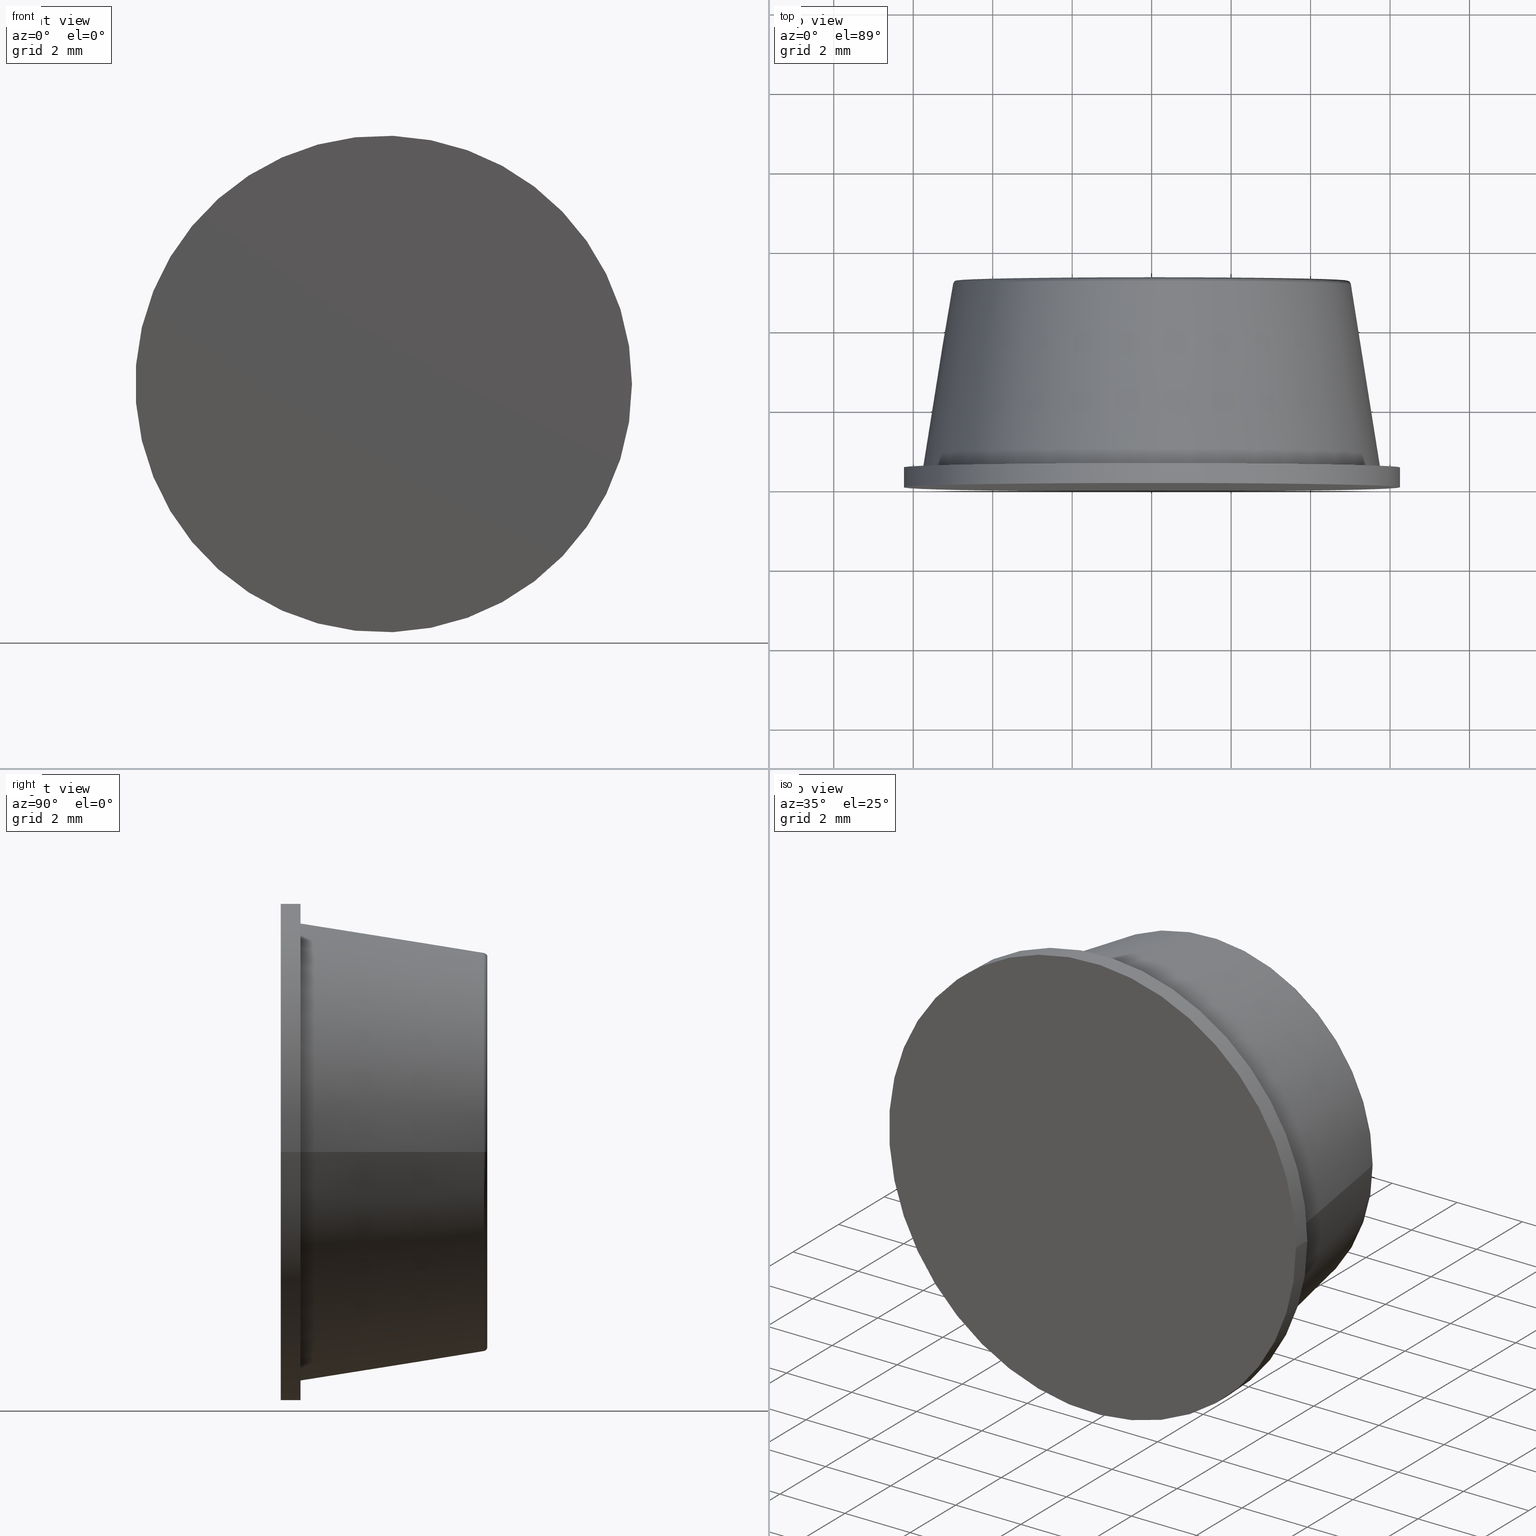
[diagram: canonical four-view strip — front | top / right | iso, engineering-drawing reading convention]
A machine part, canonical four-view strip (front | top / right | iso — engineering-drawing reading convention). The complete STEP part file that produces these views, byte-faithful:
ISO-10303-21;
HEADER;
/* Generated by software containing ST-Developer
 * from STEP Tools, Inc. (www.steptools.com) 
 */

FILE_DESCRIPTION(
/* description */ (''),
/* implementation_level */ '2;1');

FILE_NAME(
/* name */ '\\\\SYNOLOGYNAS\\web\\db2\\PR2-12-5T\\\X2\B3C4BA74\X0\\\PR
2-12-5T.stp',
/* time_stamp */ '2024-10-09T15:47:53+09:00',
/* author */ ('user'),
/* organization */ (''),
/* preprocessor_version */ 'ST-DEVELOPER v15.6',
/* originating_system */ 'Autodesk Inventor 2015',
/* authorisation */ '');

FILE_SCHEMA (('AUTOMOTIVE_DESIGN { 1 0 10303 214 3 1 1 }'));
ENDSEC;

DATA;
#10=MECHANICAL_DESIGN_GEOMETRIC_PRESENTATION_REPRESENTATION('',(#13),#129);
#11=SHAPE_REPRESENTATION_RELATIONSHIP('SRR','None',#138,#12);
#12=ADVANCED_BREP_SHAPE_REPRESENTATION($,(#14),#128);
#13=STYLED_ITEM('',(#147),#14);
#14=MANIFOLD_SOLID_BREP('\X2\C194B9ACB4DC\X0\1',#72);
#15=CYLINDRICAL_SURFACE('',#82,6.25);
#16=CONICAL_SURFACE('',#78,5.375,9.06650273981617);
#17=PLANE('',#77);
#18=PLANE('',#80);
#19=PLANE('',#84);
#20=FACE_BOUND('',#31,.T.);
#21=FACE_BOUND('',#34,.T.);
#22=FACE_BOUND('',#36,.T.);
#23=FACE_BOUND('',#38,.T.);
#24=FACE_OUTER_BOUND('',#30,.T.);
#25=FACE_OUTER_BOUND('',#32,.T.);
#26=FACE_OUTER_BOUND('',#33,.T.);
#27=FACE_OUTER_BOUND('',#35,.T.);
#28=FACE_OUTER_BOUND('',#37,.T.);
#29=FACE_OUTER_BOUND('',#39,.T.);
#30=EDGE_LOOP('',(#55));
#31=EDGE_LOOP('',(#56));
#32=EDGE_LOOP('',(#57));
#33=EDGE_LOOP('',(#58));
#34=EDGE_LOOP('',(#59));
#35=EDGE_LOOP('',(#60));
#36=EDGE_LOOP('',(#61));
#37=EDGE_LOOP('',(#62));
#38=EDGE_LOOP('',(#63));
#39=EDGE_LOOP('',(#64));
#40=CIRCLE('',#75,4.9146922498816);
#41=CIRCLE('',#76,5.01344286019461);
#42=CIRCLE('',#79,5.75);
#43=CIRCLE('',#81,6.25);
#44=CIRCLE('',#83,6.25);
#45=VERTEX_POINT('',#111);
#46=VERTEX_POINT('',#113);
#47=VERTEX_POINT('',#117);
#48=VERTEX_POINT('',#120);
#49=VERTEX_POINT('',#123);
#50=EDGE_CURVE('',#45,#45,#40,.T.);
#51=EDGE_CURVE('',#46,#46,#41,.T.);
#52=EDGE_CURVE('',#47,#47,#42,.T.);
#53=EDGE_CURVE('',#48,#48,#43,.T.);
#54=EDGE_CURVE('',#49,#49,#44,.T.);
#55=ORIENTED_EDGE('',*,*,#50,.T.);
#56=ORIENTED_EDGE('',*,*,#51,.T.);
#57=ORIENTED_EDGE('',*,*,#50,.F.);
#58=ORIENTED_EDGE('',*,*,#52,.F.);
#59=ORIENTED_EDGE('',*,*,#51,.F.);
#60=ORIENTED_EDGE('',*,*,#53,.F.);
#61=ORIENTED_EDGE('',*,*,#52,.T.);
#62=ORIENTED_EDGE('',*,*,#53,.T.);
#63=ORIENTED_EDGE('',*,*,#54,.F.);
#64=ORIENTED_EDGE('',*,*,#54,.T.);
#65=TOROIDAL_SURFACE('',#74,4.9146922498816,0.1);
#66=ADVANCED_FACE('',(#24,#20),#65,.T.);
#67=ADVANCED_FACE('',(#25),#17,.T.);
#68=ADVANCED_FACE('',(#26,#21),#16,.T.);
#69=ADVANCED_FACE('',(#27,#22),#18,.T.);
#70=ADVANCED_FACE('',(#28,#23),#15,.T.);
#71=ADVANCED_FACE('',(#29),#19,.T.);
#72=CLOSED_SHELL('',(#66,#67,#68,#69,#70,#71));
#73=AXIS2_PLACEMENT_3D('placement',#109,#85,#86);
#74=AXIS2_PLACEMENT_3D('',#110,#87,#88);
#75=AXIS2_PLACEMENT_3D('',#112,#89,#90);
#76=AXIS2_PLACEMENT_3D('',#114,#91,#92);
#77=AXIS2_PLACEMENT_3D('',#115,#93,#94);
#78=AXIS2_PLACEMENT_3D('',#116,#95,#96);
#79=AXIS2_PLACEMENT_3D('',#118,#97,#98);
#80=AXIS2_PLACEMENT_3D('',#119,#99,#100);
#81=AXIS2_PLACEMENT_3D('',#121,#101,#102);
#82=AXIS2_PLACEMENT_3D('',#122,#103,#104);
#83=AXIS2_PLACEMENT_3D('',#124,#105,#106);
#84=AXIS2_PLACEMENT_3D('',#125,#107,#108);
#85=DIRECTION('axis',(0.,0.,1.));
#86=DIRECTION('refdir',(1.,0.,0.));
#87=DIRECTION('center_axis',(6.12323399573676E-17,-1.,0.));
#88=DIRECTION('ref_axis',(0.,0.,-1.));
#89=DIRECTION('center_axis',(6.12323399573676E-17,-1.,0.));
#90=DIRECTION('ref_axis',(-1.,-6.12323399573676E-17,1.22464679914735E-16));
#91=DIRECTION('center_axis',(0.,1.,0.));
#92=DIRECTION('ref_axis',(-1.,0.,2.45858025867674E-32));
#93=DIRECTION('center_axis',(-6.12323399573676E-17,1.,0.));
#94=DIRECTION('ref_axis',(0.,0.,1.));
#95=DIRECTION('center_axis',(6.12323399573676E-17,-1.,0.));
#96=DIRECTION('ref_axis',(1.,0.,0.));
#97=DIRECTION('center_axis',(6.12323399573676E-17,-1.,0.));
#98=DIRECTION('ref_axis',(1.,6.12323399573676E-17,0.));
#99=DIRECTION('center_axis',(-6.12323399573676E-17,1.,0.));
#100=DIRECTION('ref_axis',(0.,0.,1.));
#101=DIRECTION('center_axis',(6.12323399573676E-17,-1.,0.));
#102=DIRECTION('ref_axis',(1.,6.12323399573676E-17,0.));
#103=DIRECTION('center_axis',(6.12323399573676E-17,-1.,0.));
#104=DIRECTION('ref_axis',(1.,0.,0.));
#105=DIRECTION('center_axis',(6.12323399573676E-17,-1.,0.));
#106=DIRECTION('ref_axis',(1.,6.12323399573676E-17,0.));
#107=DIRECTION('center_axis',(6.12323399573676E-17,-1.,0.));
#108=DIRECTION('ref_axis',(0.,0.,-1.));
#109=CARTESIAN_POINT('',(0.,0.,0.));
#110=CARTESIAN_POINT('Origin',(-3.12284933782575E-16,5.1,0.));
#111=CARTESIAN_POINT('',(4.9146922498816,5.2,-1.23259516440783E-31));
#112=CARTESIAN_POINT('Origin',(-3.18408167778312E-16,5.2,0.));
#113=CARTESIAN_POINT('',(5.01344286019461,5.11575807611378,-1.2279393502891E-15));
#114=CARTESIAN_POINT('Origin',(0.,5.11575807611378,-6.13969675144548E-16));
#115=CARTESIAN_POINT('Origin',(5.,5.2,0.));
#116=CARTESIAN_POINT('Origin',(-1.74512168878498E-16,2.85,0.));
#117=CARTESIAN_POINT('',(5.75,0.5,0.));
#118=CARTESIAN_POINT('Origin',(-3.06161699786838E-17,0.499999999999999,
0.));
#119=CARTESIAN_POINT('Origin',(6.25,0.5,0.));
#120=CARTESIAN_POINT('',(6.25,0.5,0.));
#121=CARTESIAN_POINT('Origin',(-3.06161699786838E-17,0.5,0.));
#122=CARTESIAN_POINT('Origin',(-1.53080849893419E-17,0.25,0.));
#123=CARTESIAN_POINT('',(6.25,0.,0.));
#124=CARTESIAN_POINT('Origin',(2.34337466040915E-32,-3.82702124733548E-16,
0.));
#125=CARTESIAN_POINT('Origin',(0.,0.,0.));
#126=UNCERTAINTY_MEASURE_WITH_UNIT(LENGTH_MEASURE(0.01),#130,
'DISTANCE_ACCURACY_VALUE',
'Maximum model space distance between geometric entities at asserted c
onnectivities');
#127=UNCERTAINTY_MEASURE_WITH_UNIT(LENGTH_MEASURE(1.E-6),#130,
'DISTANCE_ACCURACY_VALUE',
'Maximum model space distance between geometric entities at asserted c
onnectivities');
#128=(
GEOMETRIC_REPRESENTATION_CONTEXT(3)
GLOBAL_UNCERTAINTY_ASSIGNED_CONTEXT((#126))
GLOBAL_UNIT_ASSIGNED_CONTEXT((#130,#133,#131))
REPRESENTATION_CONTEXT('','3D')
);
#129=(
GEOMETRIC_REPRESENTATION_CONTEXT(3)
GLOBAL_UNCERTAINTY_ASSIGNED_CONTEXT((#127))
GLOBAL_UNIT_ASSIGNED_CONTEXT((#130,#133,#131))
REPRESENTATION_CONTEXT('','3D')
);
#130=(
LENGTH_UNIT()
NAMED_UNIT(*)
SI_UNIT(.MILLI.,.METRE.)
);
#131=(
NAMED_UNIT(*)
SI_UNIT($,.STERADIAN.)
SOLID_ANGLE_UNIT()
);
#132=DIMENSIONAL_EXPONENTS(0.,0.,0.,0.,0.,0.,0.);
#133=(
CONVERSION_BASED_UNIT('degree',#135)
NAMED_UNIT(#132)
PLANE_ANGLE_UNIT()
);
#134=(
NAMED_UNIT(*)
PLANE_ANGLE_UNIT()
SI_UNIT($,.RADIAN.)
);
#135=PLANE_ANGLE_MEASURE_WITH_UNIT(PLANE_ANGLE_MEASURE(0.01745329252),#134);
#136=SHAPE_DEFINITION_REPRESENTATION(#137,#138);
#137=PRODUCT_DEFINITION_SHAPE('',$,#140);
#138=SHAPE_REPRESENTATION('',(#73),#128);
#139=PRODUCT_DEFINITION_CONTEXT('part definition',#144,'design');
#140=PRODUCT_DEFINITION('PR2-12-5T','PR2-12-5T',#141,#139);
#141=PRODUCT_DEFINITION_FORMATION('',$,#146);
#142=PRODUCT_RELATED_PRODUCT_CATEGORY('PR2-12-5T','PR2-12-5T',(#146));
#143=APPLICATION_PROTOCOL_DEFINITION('international standard',
'automotive_design',2009,#144);
#144=APPLICATION_CONTEXT(
'Core Data for Automotive Mechanical Design Process');
#145=PRODUCT_CONTEXT('part definition',#144,'mechanical');
#146=PRODUCT('PR2-12-5T','PR2-12-5T',$,(#145));
#147=PRESENTATION_STYLE_ASSIGNMENT((#148));
#148=SURFACE_STYLE_USAGE(.BOTH.,#149);
#149=SURFACE_SIDE_STYLE($,(#150));
#150=SURFACE_STYLE_FILL_AREA(#151);
#151=FILL_AREA_STYLE($,(#152));
#152=FILL_AREA_STYLE_COLOUR($,#153);
#153=COLOUR_RGB('',1.,1.,1.);
ENDSEC;
END-ISO-10303-21;
